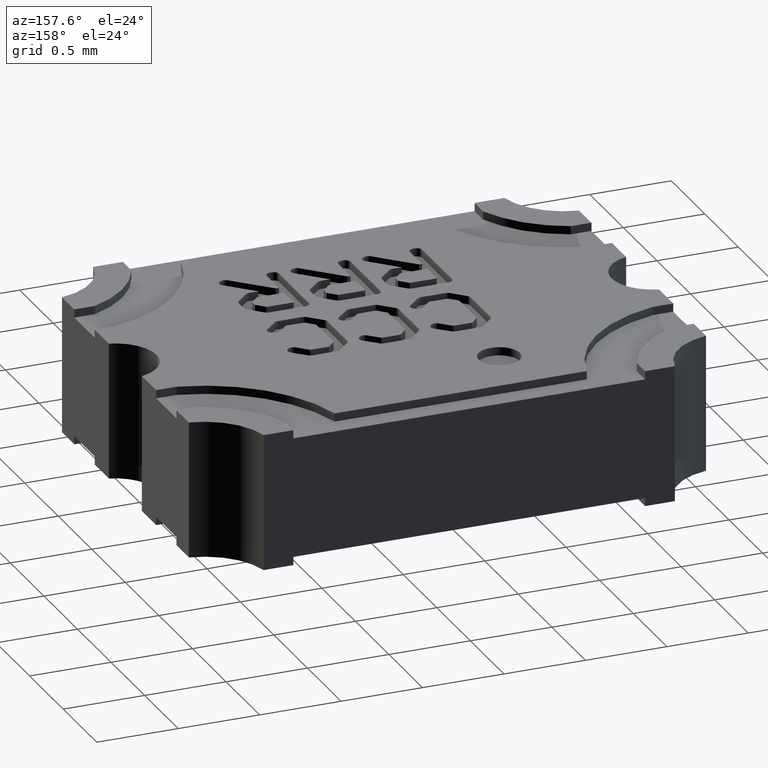
[diagram: clean part render]
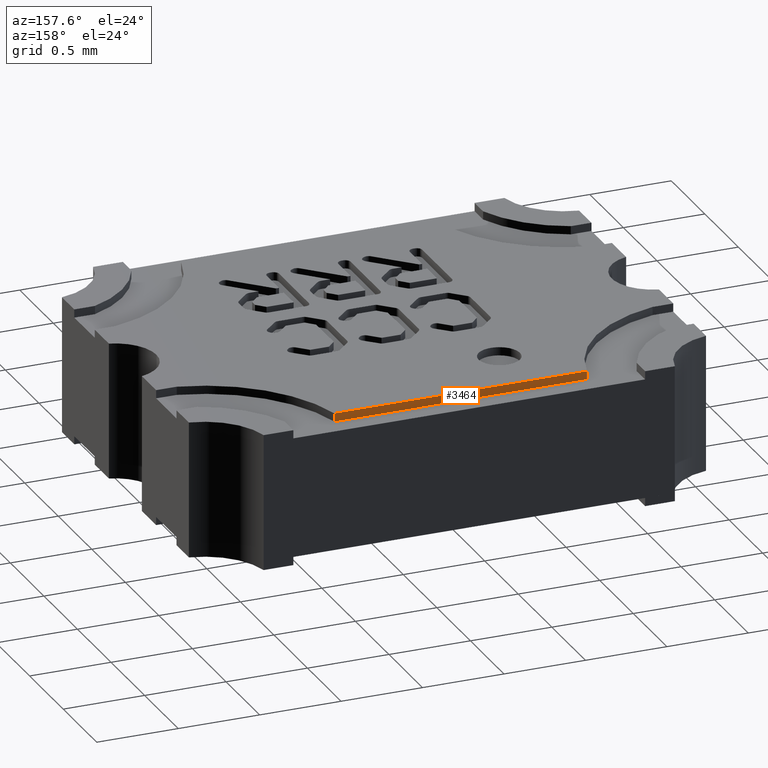
[diagram: same view with one face highlighted and labeled with its STEP entity id]
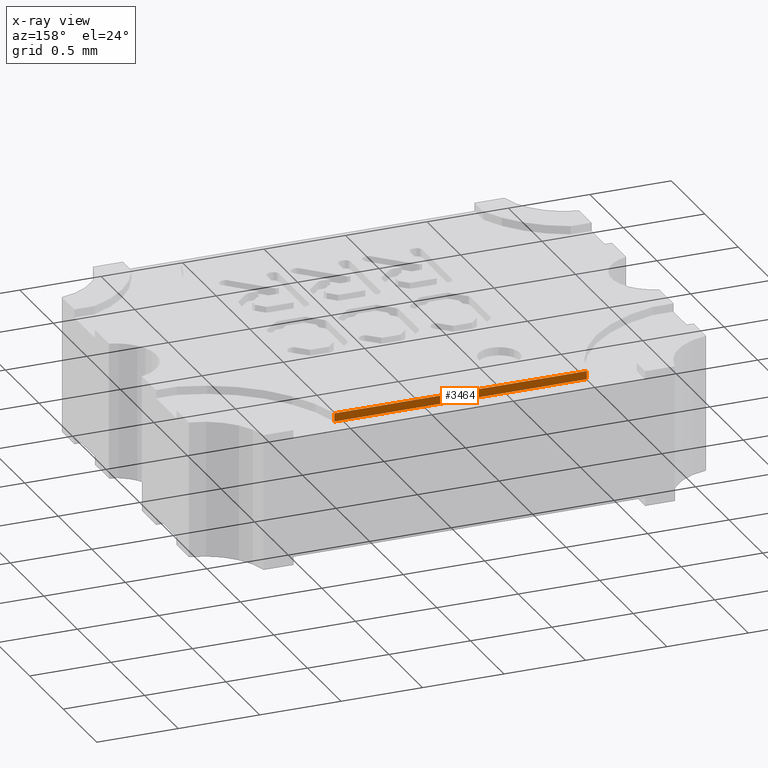
[diagram: x-ray of the same camera — body ghosted, the highlighted face saturated]
A machine part, auxiliary view. The second image highlights one B-rep face of the part: STEP entity #3464.
The next image is the same camera in x-ray: the body ghosted, the highlighted face saturated — about 0% of this face is hidden behind the body in this view.
In plain terms, the highlighted planar face has unit normal (0, 1, 0).
Its self-contained STEP definition (entity closure, byte-faithful):
#573 = VECTOR ( 'NONE', #5798, 39.37007874015748143 ) ;
#914 = DIRECTION ( 'NONE',  ( -1.000000000000000000, 0.000000000000000000, 0.000000000000000000 ) ) ;
#1006 = CARTESIAN_POINT ( 'NONE',  ( -0.03050000000422026583, 0.04499419438157221257, 0.03100000000000000325 ) ) ;
#1035 = VECTOR ( 'NONE', #8907, 39.37007874015748143 ) ;
#1072 = ORIENTED_EDGE ( 'NONE', *, *, #4578, .T. ) ;
#1649 = VERTEX_POINT ( 'NONE', #7171 ) ;
#1650 = DIRECTION ( 'NONE',  ( -0.000000000000000000, -0.000000000000000000, 1.000000000000000000 ) ) ;
#1985 = DIRECTION ( 'NONE',  ( 0.000000000000000000, 1.000000000000000000, 0.000000000000000000 ) ) ;
#2148 = EDGE_CURVE ( 'NONE', #3144, #1649, #3876, .T. ) ;
#2544 = DIRECTION ( 'NONE',  ( 0.000000000000000000, -0.000000000000000000, 1.000000000000000000 ) ) ;
#2651 = ORIENTED_EDGE ( 'NONE', *, *, #2148, .F. ) ;
#2686 = PLANE ( 'NONE',  #4490 ) ;
#2936 = VERTEX_POINT ( 'NONE', #7557 ) ;
#3001 = ORIENTED_EDGE ( 'NONE', *, *, #4475, .T. ) ;
#3027 = CARTESIAN_POINT ( 'NONE',  ( -0.06500000000000093203, 0.04499419438157221257, 0.03100000000000000325 ) ) ;
#3064 = LINE ( 'NONE', #5198, #3438 ) ;
#3144 = VERTEX_POINT ( 'NONE', #4900 ) ;
#3438 = VECTOR ( 'NONE', #1650, 39.37007874015748143 ) ;
#3464 = ADVANCED_FACE ( 'NONE', ( #6285 ), #2686, .T. ) ;
#3471 = ORIENTED_EDGE ( 'NONE', *, *, #4944, .F. ) ;
#3494 = CARTESIAN_POINT ( 'NONE',  ( -0.03050000000422026583, 0.04499419438157221257, 0.03100000000000000325 ) ) ;
#3876 = LINE ( 'NONE', #8121, #573 ) ;
#4475 = EDGE_CURVE ( 'NONE', #2936, #4747, #5966, .T. ) ;
#4490 = AXIS2_PLACEMENT_3D ( 'NONE', #8379, #1985, #2544 ) ;
#4578 = EDGE_CURVE ( 'NONE', #4747, #1649, #4705, .T. ) ;
#4705 = LINE ( 'NONE', #1006, #1035 ) ;
#4747 = VERTEX_POINT ( 'NONE', #3494 ) ;
#4900 = CARTESIAN_POINT ( 'NONE',  ( 0.03049999999797525438, 0.04499419438157222645, 0.03300000000000000155 ) ) ;
#4944 = EDGE_CURVE ( 'NONE', #2936, #3144, #3064, .T. ) ;
#5198 = CARTESIAN_POINT ( 'NONE',  ( 0.03049999999797525438, 0.04499419438157222645, 0.03100000000000000325 ) ) ;
#5798 = DIRECTION ( 'NONE',  ( -1.000000000000000000, 0.000000000000000000, 0.000000000000000000 ) ) ;
#5966 = LINE ( 'NONE', #3027, #6852 ) ;
#6285 = FACE_OUTER_BOUND ( 'NONE', #7207, .T. ) ;
#6852 = VECTOR ( 'NONE', #914, 39.37007874015748143 ) ;
#7171 = CARTESIAN_POINT ( 'NONE',  ( -0.03050000000422026583, 0.04499419438157221257, 0.03300000000000000155 ) ) ;
#7207 = EDGE_LOOP ( 'NONE', ( #2651, #3471, #3001, #1072 ) ) ;
#7557 = CARTESIAN_POINT ( 'NONE',  ( 0.03049999999797524397, 0.04499419438157221257, 0.03100000000000000325 ) ) ;
#8121 = CARTESIAN_POINT ( 'NONE',  ( -0.06500000000000093203, 0.04499419438157221257, 0.03300000000000000155 ) ) ;
#8379 = CARTESIAN_POINT ( 'NONE',  ( -0.06500000000000093203, 0.04499419438157221257, 0.03100000000000000325 ) ) ;
#8907 = DIRECTION ( 'NONE',  ( -0.000000000000000000, -0.000000000000000000, 1.000000000000000000 ) ) ;